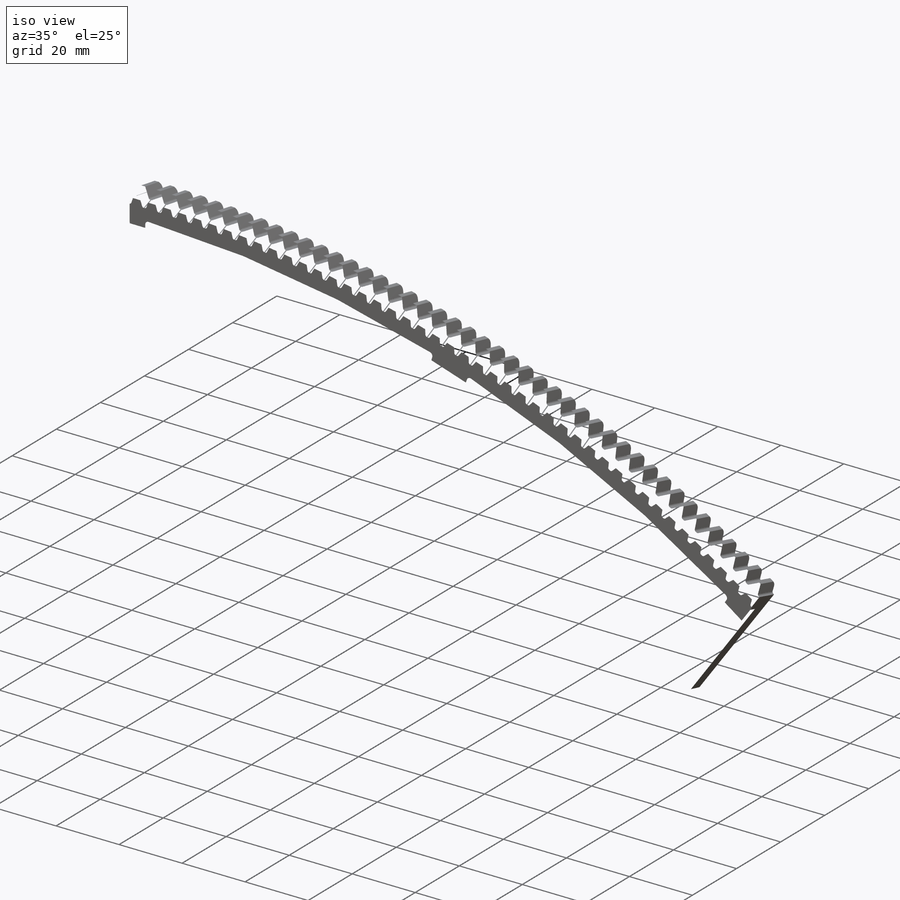
[diagram: iso view]
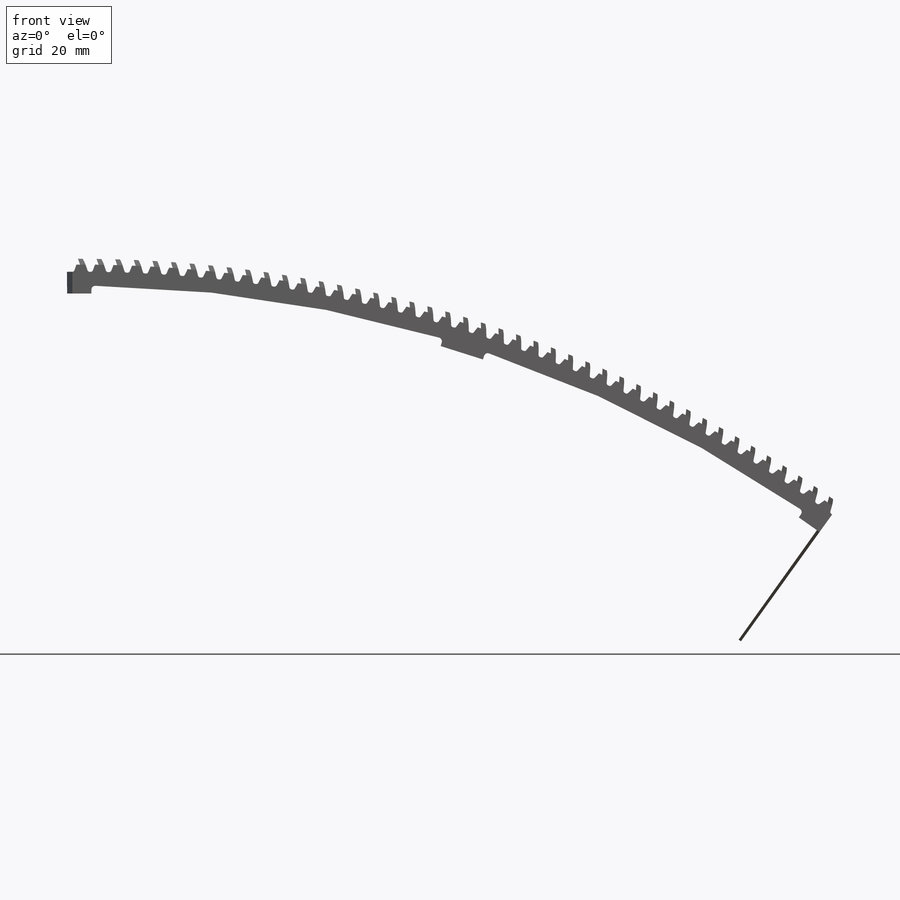
[diagram: front view]
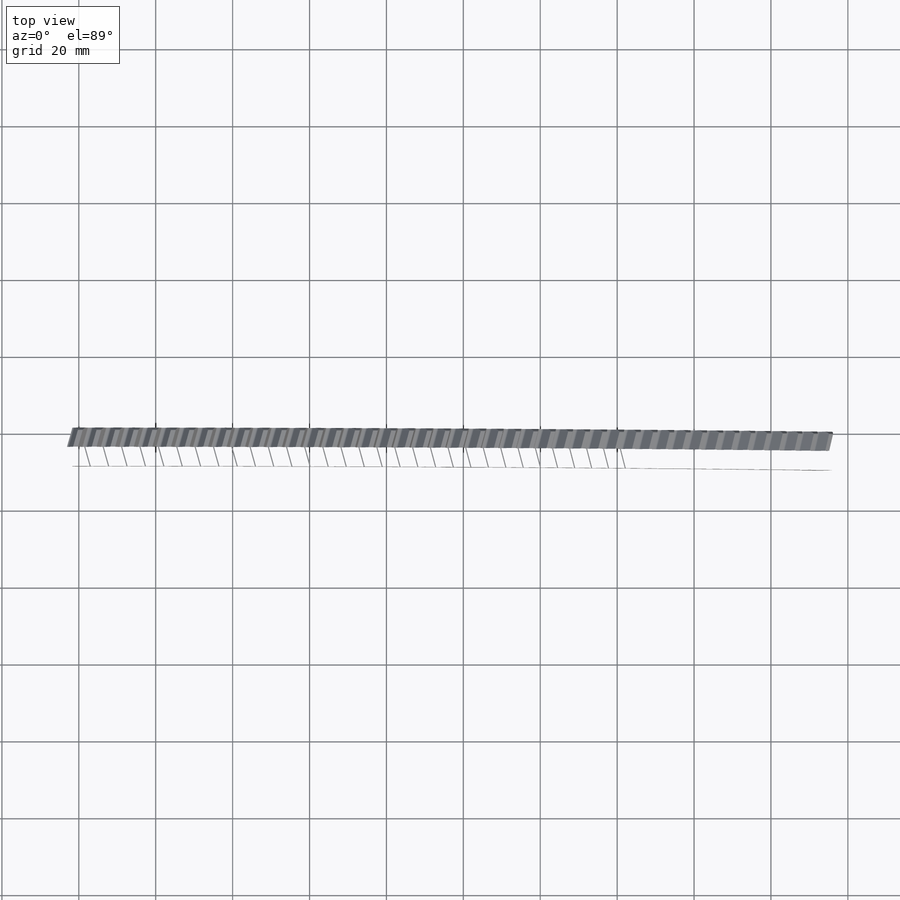
[diagram: top view]
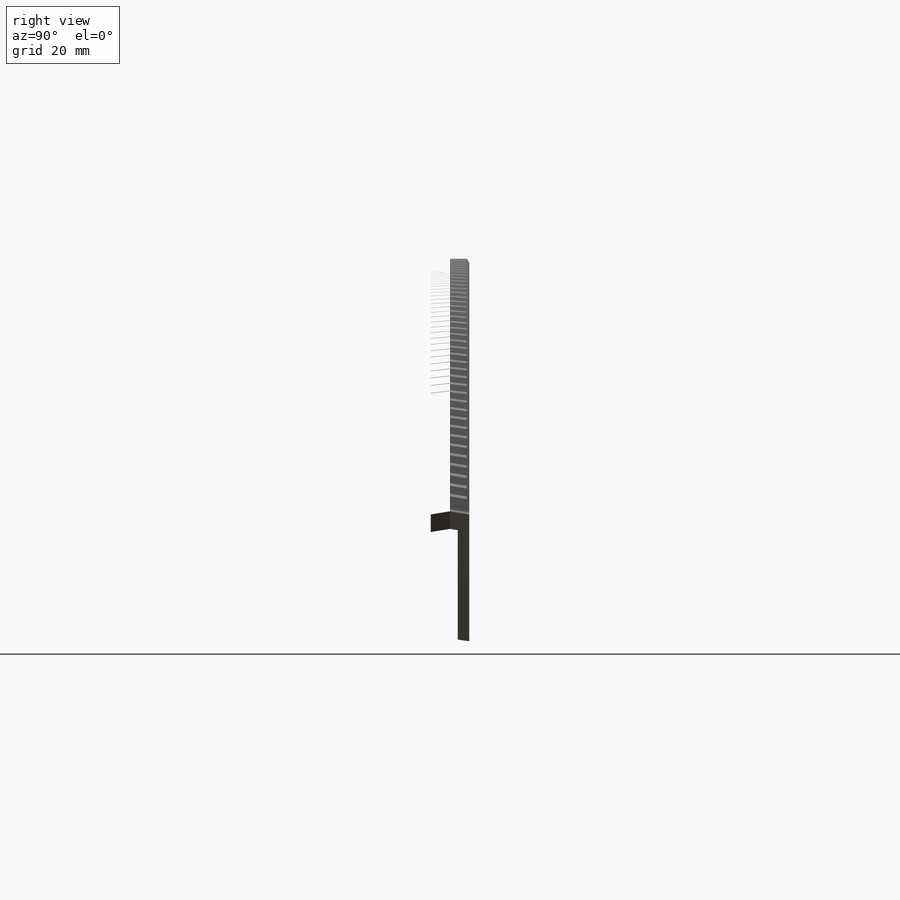
[diagram: right view]
SOLIDWORKS PART (.sldprt)
format: sldprt  version: not decoded by parser v0  size: 6,575,616 bytes
history: native  units: mm
features: sketch x14, cut_extrude x7, extrude x3, material x1, helix x1, plane x1, pattern_circular x1, cut_revolve x1, mirror x1 + 1 further entry (+13 scaffold rows collapsed)
feature tree (44):
  scaffold x13  (default folders/planes/origin — collapsed)
  material  "Material <not specified>"
  "Design Table"
  sketch  "Pitch Diameter"  dims[D1=675.0mm]
  sketch  "Sketch7"
  helix  "Helix/Spiral1"  Pitch=5mm
  sketch  "Sketch1"  dims[c1.D1=14.0mm c1.D2=5.0mm c1.D3=14.0mm c1.D4=~22.241922mm c2.D1=~5.360874mm c2.D2=~9.467075mm c3.D1=0.0mm c3.D2=0.0mm c3.D3=~0.187333mm c3.D4=~0.370672mm c3.D5=~0.550055mm c3.D6=~0.725524mm c3.D7=~0.897118mm c3.D8=~1.064878mm c3.D9=~1.228844mm c3.D10=~1.389057mm c3.D11=~1.545557mm c3.D12=~1.698385mm c3.D13=~1.702594mm c3.D14=~1.706803mm c3.D15=~1.717612mm c3.D16=~1.731922mm c3.D17=~1.751498mm c3.D18=~1.779195mm c3.D19=~1.819625mm c3.D20=~1.879893mm c3.D21=~1.969244mm c3.D22=~2.094251mm c3.D23=~2.247089mm c3.D24=0.0mm c3.D25=~340.630585mm c3.D26=~340.149617mm c3.D27=~339.673032mm c3.D28=~339.200852mm c3.D29=~338.733105mm c3.D30=~338.269813mm c3.D31=~337.811002mm c3.D32=~337.356694mm c3.D33=~336.906913mm c3.D34=~336.461684mm c3.D35=~336.021028mm c3.D36=~336.009489mm c3.D37=~335.997951mm c3.D38=~335.971637mm c3.D39=~335.941116mm c3.D40=~335.905167mm c3.D41=~335.862389mm c3.D42=~335.811582mm c3.D43=~335.752971mm c3.D44=~335.691139mm c3.D45=~335.639221mm c3.D46=~335.617478mm]
  extrude  "Tooth"  Depth=5mm
  plane  "Plane1"
  sketch  "Sketch6"  dims[D1=678.0mm]
  sketch  "Sketch8"  dims[c1.D1=~367.283024mm c2.D1=36.0deg]
  pattern_circular  "CirPattern1"  Count=45 Angle=0.818182deg
  cut_extrude  "Addendum"  Depth=10mm
  sketch  "Sketch9"  dims[c1.D1=0.5mm c1.D2=337.5mm c1.D3=1.5mm c2.D1=1.5mm c2.D2=~0.500578mm c2.D3=~338.003424mm c3.D2=~338.003424mm c3.D1=1.5mm c3.D3=~0.500578mm c4.D2=337.5mm]
  cut_revolve  "Rounded Edge"  Angle=360deg
  sketch  "Sketch10"
  cut_extrude  "Cut-Extrude1"  Depth=10mm
  mirror  "Mirror5"
  sketch  "Sketch12"  dims[D1=582.0mm]
  cut_extrude  "Cut-Extrude2"  Depth=10mm
  sketch  "Sketch13"  dims[D1=660.0mm]
  cut_extrude  "Cut-Extrude3"  Depth=7mm
  sketch  "Sketch14"  dims[c1.D1=10.0mm c1.D3=10.0mm c1.D4=~319.968532mm c1.D6=8.0mm c1.D7=325.0mm c1.D2=~321.458537mm c2.D2=9.0deg c2.D3=~367.283024mm c3.D3=~17.459709deg c4.D3=~367.283024mm c4.D4=5.0mm c4.D5=20.0mm c4.D7=~29.998882mm c5.D5=305.0mm]
  cut_extrude  "Cut-Extrude4"  Depth=5mm
  sketch  "Sketch15"  dims[c1.D1=~9.279446mm c1.D2=8.0mm c1.D3=8.0mm c2.D2=650.0mm c2.D3=~5.318021mm c2.D4=4.0mm c2.D5=~4.946918mm]
  sketch  "Sketch16"  dims[D1=335.0mm]
  extrude  "Boss-Extrude2"  Depth=2mm
  cut_extrude  "Cut-Extrude5"  Depth=4mm
  sketch  "Sketch29"  dims[c1.D4=4.0mm c1.D5=4.0mm c1.D1=~40.596764mm c2.D1=~0.287612deg c3.D1=10.0mm c3.D2=10.0mm c3.D3=10.0mm]
  extrude  "Boss-Extrude3"  Depth=0.5mm
  sketch  "Sketch30"  dims[c1.D1=332.0mm c1.D5=1.0mm c2.D1=2.0mm c2.D2=~319.355561mm c3.D2=1.0deg c3.D3=~294.991631mm c4.D3=~17.999996deg c4.D4=~329.820236mm c5.D4=1.0deg c5.D1=2.0mm]
  cut_extrude  "Cut-Extrude6"  Depth=10mm
decode coverage: 25 of 28 modeling features carry decoded parameters; 1 rows unclassified (native names shown)
note: ~ marks probable driven/reference dimensions
note: suppression state not decoded; provenance and decode notes live in map.json
